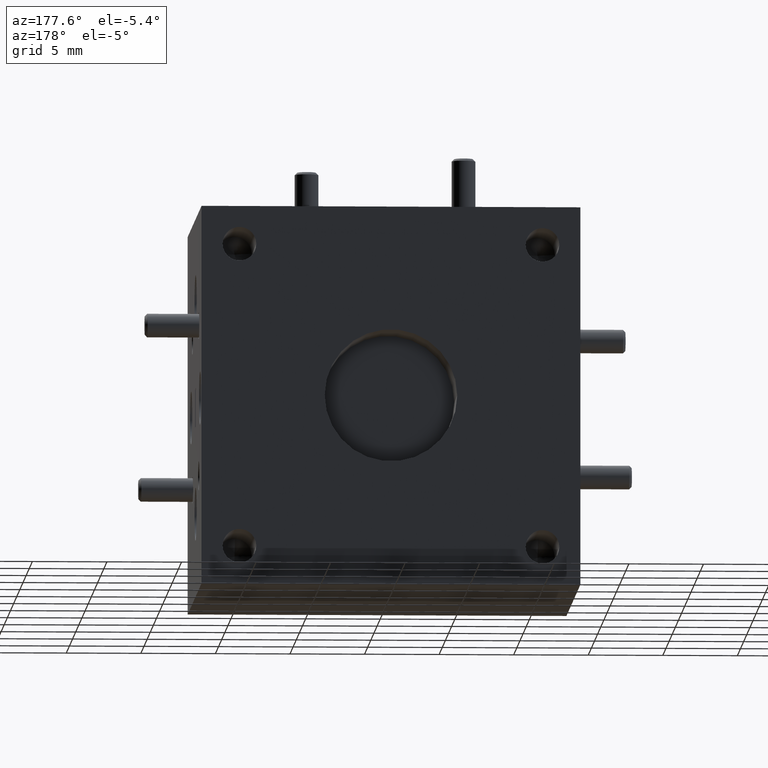
[diagram: clean part render]
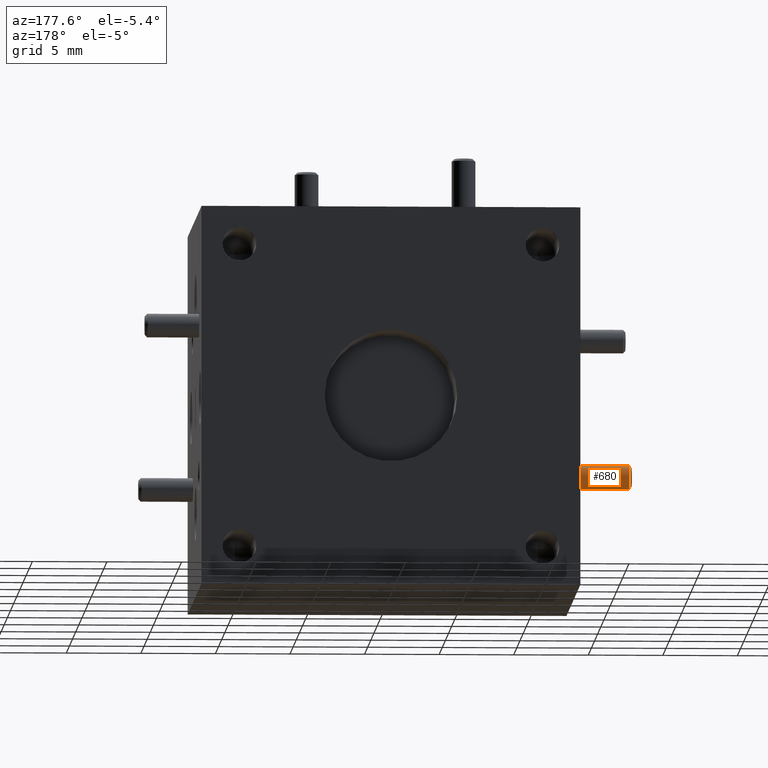
[diagram: same view with one face highlighted and labeled with its STEP entity id]
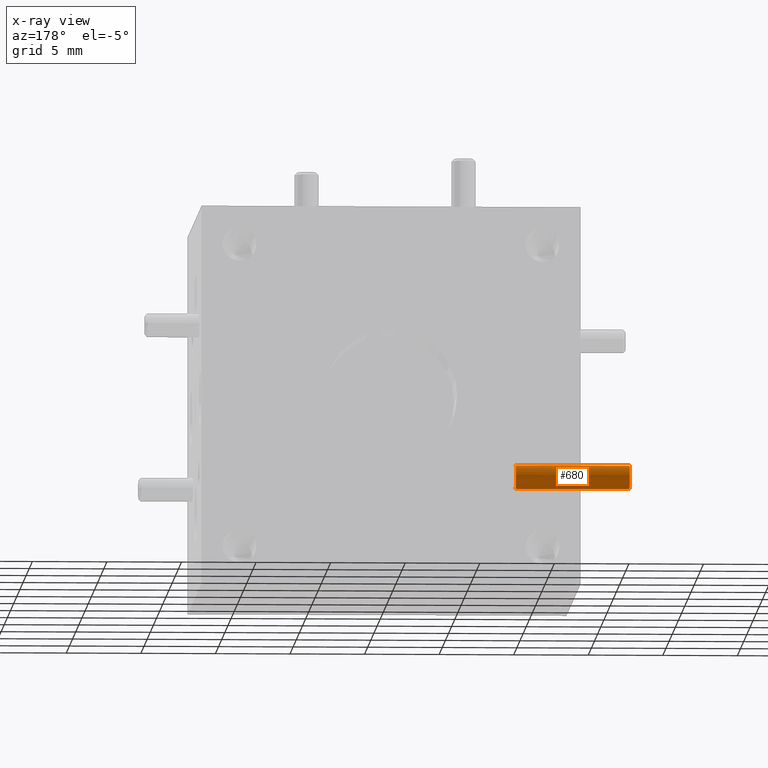
[diagram: x-ray of the same camera — body ghosted, the highlighted face saturated]
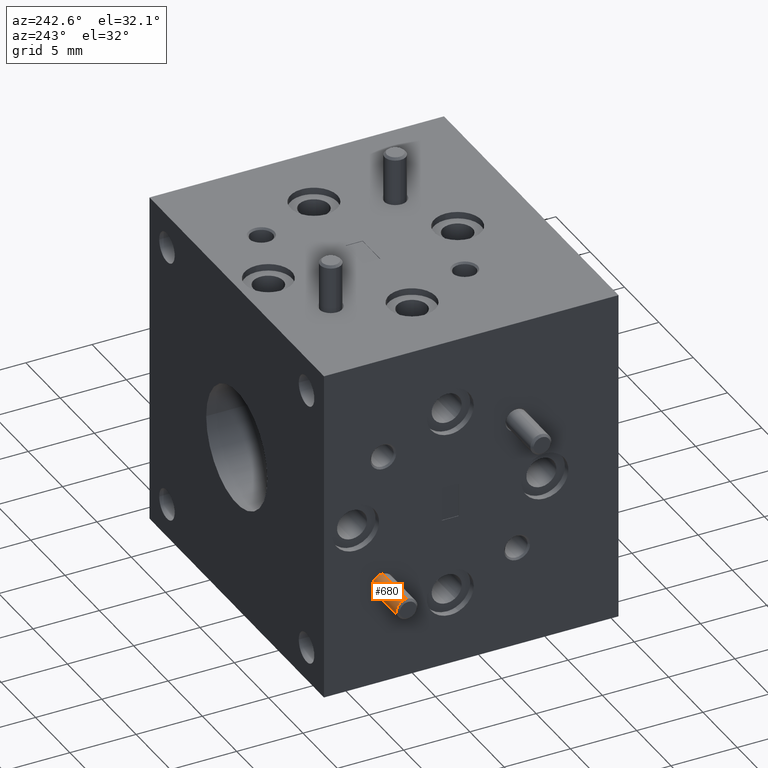
[diagram: same view with one face highlighted and labeled with its STEP entity id]
A machine part, auxiliary view. The second image highlights one B-rep face of the part: STEP entity #680.
The next image is the same camera in x-ray: the body ghosted, the highlighted face saturated — about 0% of this face is hidden behind the body in this view.
A second angle (auxiliary view) of the same face is appended — the face is thin or edge-on in the first view.
In plain terms, the highlighted cylindrical surface (edge-blend (fillet) strip) has radius 0.7938 mm, axis along (1, 0, -0).
Its self-contained STEP definition (entity closure, byte-faithful):
#409 = DIRECTION ( 'NONE',  ( 0.0000000000000000000, 0.0000000000000000000, -1.000000000000000000 ) ) ;
#485 = EDGE_CURVE ( 'NONE', #5682, #7290, #900, .T. ) ;
#636 = EDGE_LOOP ( 'NONE', ( #7410, #1861, #6715, #2373 ) ) ;
#680 = ADVANCED_FACE ( 'NONE', ( #6458 ), #4286, .T. ) ;
#843 = CARTESIAN_POINT ( 'NONE',  ( -0.6362500000000002000, 0.6988737822087165400, -0.1676237822095174900 ) ) ;
#900 = LINE ( 'NONE', #8062, #5623 ) ;
#1118 = CARTESIAN_POINT ( 'NONE',  ( -0.3362499999999996000, 0.6988737822087165400, -0.1988737822087162100 ) ) ;
#1421 = CARTESIAN_POINT ( 'NONE',  ( -0.6424999999999996300, 0.6988737822087165400, -0.1988737822087161000 ) ) ;
#1745 = AXIS2_PLACEMENT_3D ( 'NONE', #1118, #9647, #409 ) ;
#1861 = ORIENTED_EDGE ( 'NONE', *, *, #485, .T. ) ;
#2373 = ORIENTED_EDGE ( 'NONE', *, *, #6658, .F. ) ;
#2821 = EDGE_CURVE ( 'NONE', #3064, #5682, #10005, .T. ) ;
#3005 = DIRECTION ( 'NONE',  ( 1.000000000000000000, 2.436301379651147100E-032, -3.885780586188047900E-016 ) ) ;
#3046 = CARTESIAN_POINT ( 'NONE',  ( -0.6362500000000002000, 0.6988737822087165400, -0.1988737822087161000 ) ) ;
#3064 = VERTEX_POINT ( 'NONE', #7252 ) ;
#3237 = LINE ( 'NONE', #7917, #7489 ) ;
#3409 = DIRECTION ( 'NONE',  ( 1.000000000000000000, 2.436301379651147100E-032, -3.885780586188047400E-016 ) ) ;
#4025 = CARTESIAN_POINT ( 'NONE',  ( -0.3362499999999996000, 0.6988737822087165400, -0.2301237822117148700 ) ) ;
#4286 = CYLINDRICAL_SURFACE ( 'NONE', #4470, 0.03125000000000021500 ) ;
#4470 = AXIS2_PLACEMENT_3D ( 'NONE', #1421, #3005, #4614 ) ;
#4595 = DIRECTION ( 'NONE',  ( 0.0000000000000000000, 0.0000000000000000000, -1.000000000000000000 ) ) ;
#4614 = DIRECTION ( 'NONE',  ( 0.0000000000000000000, 0.0000000000000000000, -1.000000000000000000 ) ) ;
#5513 = CIRCLE ( 'NONE', #1745, 0.03125000000000025000 ) ;
#5552 = CARTESIAN_POINT ( 'NONE',  ( -0.3362499999999996000, 0.6988737822087165400, -0.1676237822057175500 ) ) ;
#5623 = VECTOR ( 'NONE', #3409, 39.37007874015748100 ) ;
#5682 = VERTEX_POINT ( 'NONE', #843 ) ;
#6458 = FACE_OUTER_BOUND ( 'NONE', #636, .T. ) ;
#6658 = EDGE_CURVE ( 'NONE', #3064, #7218, #3237, .T. ) ;
#6715 = ORIENTED_EDGE ( 'NONE', *, *, #8137, .T. ) ;
#6834 = AXIS2_PLACEMENT_3D ( 'NONE', #3046, #9261, #4595 ) ;
#7218 = VERTEX_POINT ( 'NONE', #4025 ) ;
#7252 = CARTESIAN_POINT ( 'NONE',  ( -0.6362500000000002000, 0.6988737822087165400, -0.2301237822079148000 ) ) ;
#7290 = VERTEX_POINT ( 'NONE', #5552 ) ;
#7410 = ORIENTED_EDGE ( 'NONE', *, *, #2821, .T. ) ;
#7489 = VECTOR ( 'NONE', #9459, 39.37007874015748100 ) ;
#7917 = CARTESIAN_POINT ( 'NONE',  ( -0.6424999999999996300, 0.6988737822087165400, -0.2301237822087163200 ) ) ;
#8062 = CARTESIAN_POINT ( 'NONE',  ( -0.6424999999999996300, 0.6988737822087165400, -0.1676237822087159000 ) ) ;
#8137 = EDGE_CURVE ( 'NONE', #7290, #7218, #5513, .T. ) ;
#9261 = DIRECTION ( 'NONE',  ( 1.000000000000000000, 2.436301379651147100E-032, -3.885780586188047900E-016 ) ) ;
#9459 = DIRECTION ( 'NONE',  ( 1.000000000000000000, 2.436301379651147100E-032, -3.885780586188047400E-016 ) ) ;
#9647 = DIRECTION ( 'NONE',  ( -1.000000000000000000, -2.436301379651147100E-032, 3.885780586188047900E-016 ) ) ;
#10005 = CIRCLE ( 'NONE', #6834, 0.03125000000000021500 ) ;